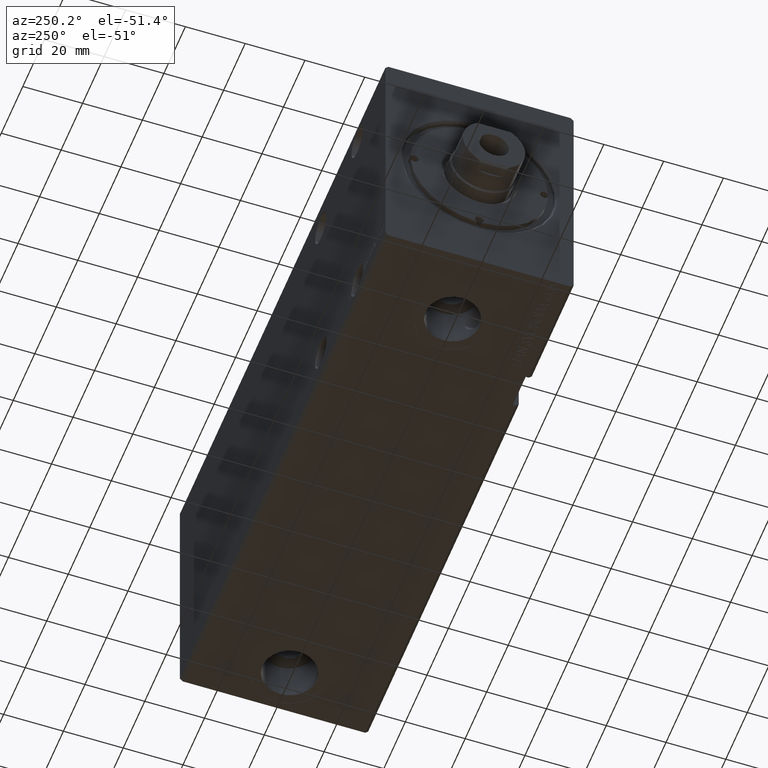
[diagram: clean part render]
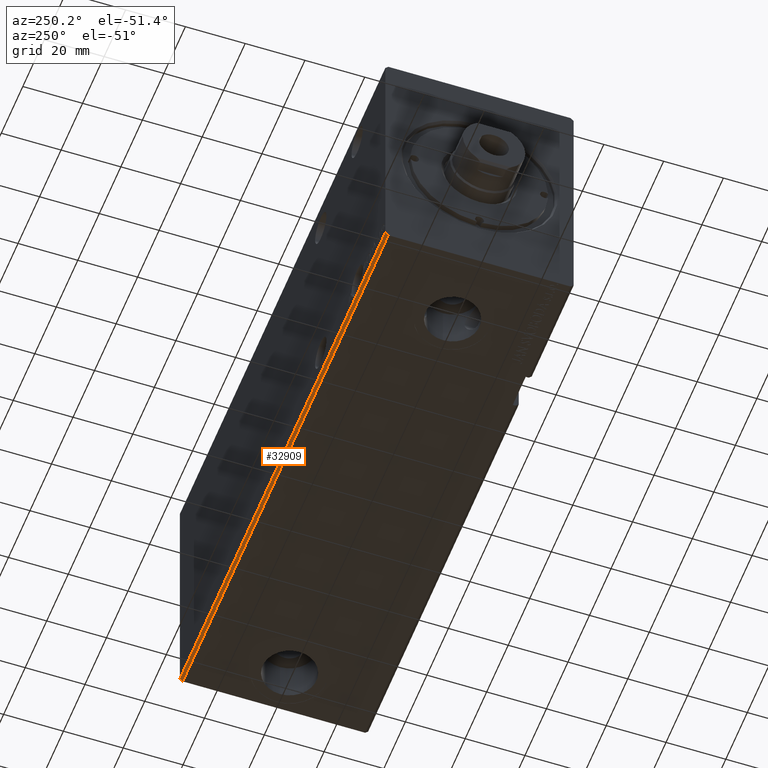
[diagram: same view with one face highlighted and labeled with its STEP entity id]
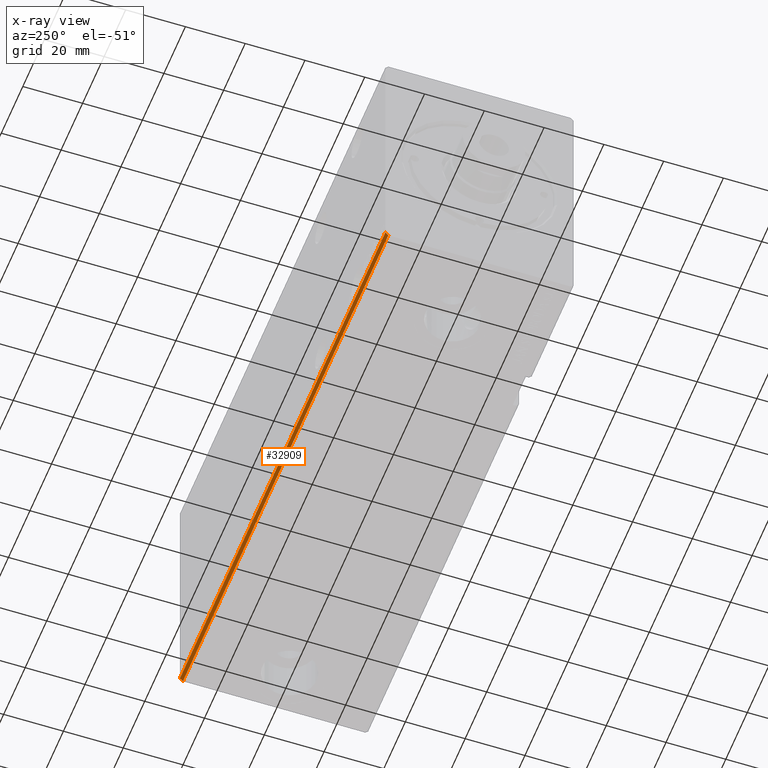
[diagram: x-ray of the same camera — body ghosted, the highlighted face saturated]
A machine part, auxiliary view. The second image highlights one B-rep face of the part: STEP entity #32909.
The next image is the same camera in x-ray: the body ghosted, the highlighted face saturated — about 0% of this face is hidden behind the body in this view.
In plain terms, the highlighted planar face has unit normal (0, -0.7071, 0.7071).
Its self-contained STEP definition (entity closure, byte-faithful):
#1327 = DIRECTION ( 'NONE',  ( -1.000000000000000000, -0.000000000000000000, -0.000000000000000000 ) ) ;
#1773 = EDGE_LOOP ( 'NONE', ( #5362, #2508, #39754, #18479 ) ) ;
#2117 = VERTEX_POINT ( 'NONE', #8341 ) ;
#2290 = FACE_OUTER_BOUND ( 'NONE', #1773, .T. ) ;
#2508 = ORIENTED_EDGE ( 'NONE', *, *, #11978, .F. ) ;
#3925 = VECTOR ( 'NONE', #36386, 999.9999999999998863 ) ;
#5316 = PLANE ( 'NONE',  #15440 ) ;
#5362 = ORIENTED_EDGE ( 'NONE', *, *, #37244, .T. ) ;
#5507 = DIRECTION ( 'NONE',  ( 0.000000000000000000, -0.7071067811865489050, 0.7071067811865462405 ) ) ;
#6583 = VERTEX_POINT ( 'NONE', #17466 ) ;
#8341 = CARTESIAN_POINT ( 'NONE',  ( 191.0000000000000000, 30.50000000000001776, -42.50000000000000711 ) ) ;
#11774 = LINE ( 'NONE', #33555, #3925 ) ;
#11978 = EDGE_CURVE ( 'NONE', #6583, #36254, #23360, .T. ) ;
#13908 = CARTESIAN_POINT ( 'NONE',  ( 0.000000000000000000, 31.50000000000001421, -41.50000000000000711 ) ) ;
#14215 = DIRECTION ( 'NONE',  ( 0.000000000000000000, -0.7071067811865462405, -0.7071067811865489050 ) ) ;
#15440 = AXIS2_PLACEMENT_3D ( 'NONE', #39237, #5507, #14215 ) ;
#16452 = CARTESIAN_POINT ( 'NONE',  ( 191.0000000000000000, 30.50000000000001776, -42.50000000000000711 ) ) ;
#17466 = CARTESIAN_POINT ( 'NONE',  ( 191.0000000000000000, 31.50000000000001421, -41.50000000000000711 ) ) ;
#18479 = ORIENTED_EDGE ( 'NONE', *, *, #34441, .T. ) ;
#19339 = VERTEX_POINT ( 'NONE', #37058 ) ;
#21260 = CARTESIAN_POINT ( 'NONE',  ( 191.0000000000000000, 31.50000000000001421, -41.50000000000000711 ) ) ;
#23161 = VECTOR ( 'NONE', #31784, 999.9999999999998863 ) ;
#23360 = LINE ( 'NONE', #21260, #25252 ) ;
#24494 = DIRECTION ( 'NONE',  ( -1.000000000000000000, -0.000000000000000000, -0.000000000000000000 ) ) ;
#25157 = VECTOR ( 'NONE', #1327, 1000.000000000000000 ) ;
#25252 = VECTOR ( 'NONE', #24494, 1000.000000000000000 ) ;
#26429 = EDGE_CURVE ( 'NONE', #2117, #6583, #35202, .T. ) ;
#31784 = DIRECTION ( 'NONE',  ( 0.000000000000000000, 0.7071067811865462405, 0.7071067811865489050 ) ) ;
#32015 = LINE ( 'NONE', #32214, #25157 ) ;
#32214 = CARTESIAN_POINT ( 'NONE',  ( 191.0000000000000000, 30.50000000000001776, -42.50000000000000711 ) ) ;
#32909 = ADVANCED_FACE ( 'NONE', ( #2290 ), #5316, .F. ) ;
#33555 = CARTESIAN_POINT ( 'NONE',  ( 0.000000000000000000, 30.50000000000001776, -42.50000000000000711 ) ) ;
#34441 = EDGE_CURVE ( 'NONE', #2117, #19339, #32015, .T. ) ;
#35202 = LINE ( 'NONE', #16452, #23161 ) ;
#36254 = VERTEX_POINT ( 'NONE', #13908 ) ;
#36386 = DIRECTION ( 'NONE',  ( 0.000000000000000000, 0.7071067811865462405, 0.7071067811865489050 ) ) ;
#37058 = CARTESIAN_POINT ( 'NONE',  ( 0.000000000000000000, 30.50000000000001776, -42.50000000000000711 ) ) ;
#37244 = EDGE_CURVE ( 'NONE', #19339, #36254, #11774, .T. ) ;
#39237 = CARTESIAN_POINT ( 'NONE',  ( 191.0000000000000000, 30.50000000000001776, -42.50000000000000711 ) ) ;
#39754 = ORIENTED_EDGE ( 'NONE', *, *, #26429, .F. ) ;